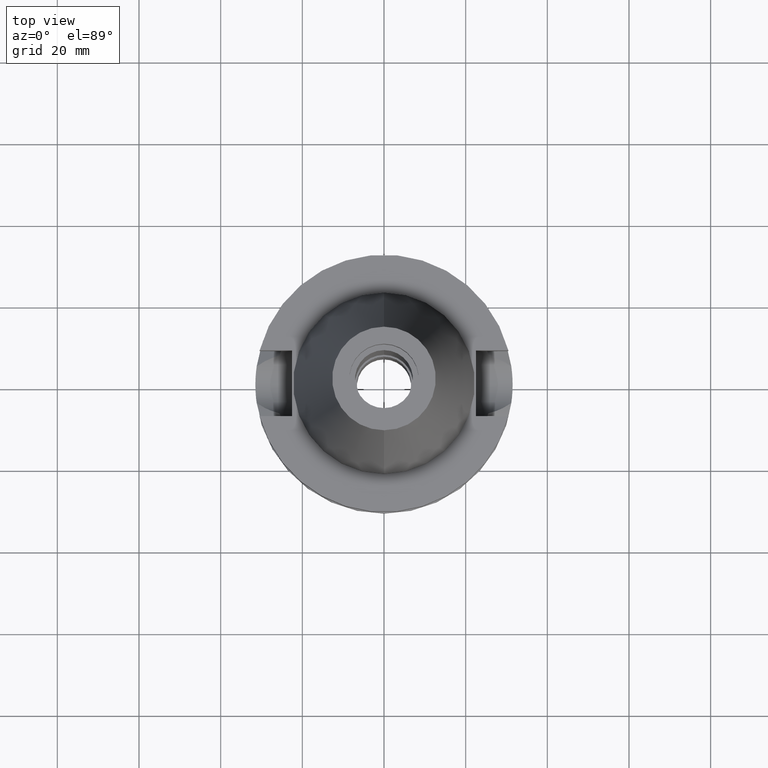
[diagram: clean part render]
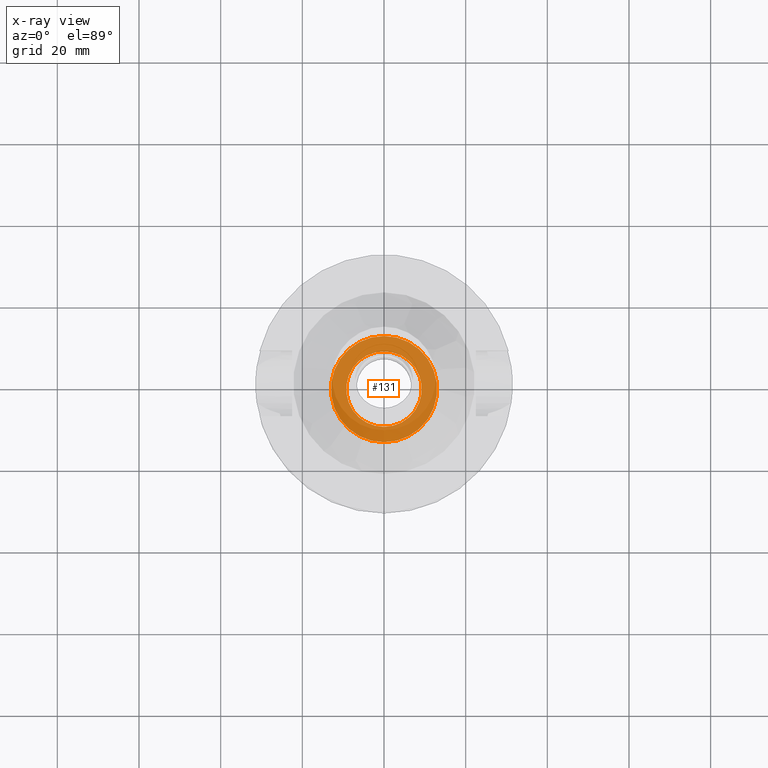
[diagram: x-ray — body ghosted, one internal face saturated and labeled with its STEP entity id]
A machine part, top view, then the same camera in x-ray: the body is ghosted and one INTERNAL B-rep face — a face not visible from any outside direction — is saturated and labeled: STEP entity #131.
In plain terms, the highlighted planar face has unit normal (0, 0, -1).
Its self-contained STEP definition (entity closure, byte-faithful):
#32 = DIRECTION ( 'NONE',  ( 0.0000000000000000000, 0.0000000000000000000, 1.000000000000000000 ) ) ;
#131 = ADVANCED_FACE ( 'NONE', ( #940, #2076 ), #3514, .F. ) ;
#171 = EDGE_CURVE ( 'NONE', #3494, #1661, #2758, .T. ) ;
#255 = EDGE_CURVE ( 'NONE', #1661, #3494, #1099, .T. ) ;
#336 = EDGE_LOOP ( 'NONE', ( #2705, #3433 ) ) ;
#701 = DIRECTION ( 'NONE',  ( 0.0000000000000000000, -1.000000000000000000, 0.0000000000000000000 ) ) ;
#829 = EDGE_CURVE ( 'NONE', #2169, #3541, #1262, .T. ) ;
#859 = CARTESIAN_POINT ( 'NONE',  ( 0.0000000000000000000, -9.250000000000000000, -11.00000000000000000 ) ) ;
#883 = DIRECTION ( 'NONE',  ( 0.0000000000000000000, -1.000000000000000000, 0.0000000000000000000 ) ) ;
#921 = CIRCLE ( 'NONE', #1070, 13.00000000000000000 ) ;
#940 = FACE_OUTER_BOUND ( 'NONE', #336, .T. ) ;
#994 = CARTESIAN_POINT ( 'NONE',  ( 0.0000000000000000000, 9.250000000000000000, -11.00000000000000000 ) ) ;
#1070 = AXIS2_PLACEMENT_3D ( 'NONE', #1838, #2120, #701 ) ;
#1079 = DIRECTION ( 'NONE',  ( 0.0000000000000000000, 0.0000000000000000000, -1.000000000000000000 ) ) ;
#1099 = CIRCLE ( 'NONE', #3643, 9.250000000000000000 ) ;
#1121 = CARTESIAN_POINT ( 'NONE',  ( 0.0000000000000000000, 0.0000000000000000000, -11.00000000000000000 ) ) ;
#1146 = DIRECTION ( 'NONE',  ( 0.0000000000000000000, 1.000000000000000000, 0.0000000000000000000 ) ) ;
#1262 = CIRCLE ( 'NONE', #1857, 13.00000000000000000 ) ;
#1661 = VERTEX_POINT ( 'NONE', #994 ) ;
#1688 = EDGE_CURVE ( 'NONE', #3541, #2169, #921, .T. ) ;
#1693 = CARTESIAN_POINT ( 'NONE',  ( 0.0000000000000000000, -13.00000000000000000, -11.00000000000000000 ) ) ;
#1699 = DIRECTION ( 'NONE',  ( 0.0000000000000000000, 0.0000000000000000000, 1.000000000000000000 ) ) ;
#1756 = ORIENTED_EDGE ( 'NONE', *, *, #255, .F. ) ;
#1811 = ORIENTED_EDGE ( 'NONE', *, *, #171, .F. ) ;
#1838 = CARTESIAN_POINT ( 'NONE',  ( 0.0000000000000000000, 0.0000000000000000000, -11.00000000000000000 ) ) ;
#1857 = AXIS2_PLACEMENT_3D ( 'NONE', #1121, #1079, #2807 ) ;
#1979 = AXIS2_PLACEMENT_3D ( 'NONE', #3209, #2297, #883 ) ;
#2076 = FACE_BOUND ( 'NONE', #2604, .T. ) ;
#2120 = DIRECTION ( 'NONE',  ( 0.0000000000000000000, 0.0000000000000000000, -1.000000000000000000 ) ) ;
#2169 = VERTEX_POINT ( 'NONE', #2795 ) ;
#2297 = DIRECTION ( 'NONE',  ( 0.0000000000000000000, 0.0000000000000000000, -1.000000000000000000 ) ) ;
#2576 = CARTESIAN_POINT ( 'NONE',  ( 0.0000000000000000000, 0.0000000000000000000, -11.00000000000000000 ) ) ;
#2604 = EDGE_LOOP ( 'NONE', ( #1756, #1811 ) ) ;
#2705 = ORIENTED_EDGE ( 'NONE', *, *, #829, .F. ) ;
#2758 = CIRCLE ( 'NONE', #3274, 9.250000000000000000 ) ;
#2795 = CARTESIAN_POINT ( 'NONE',  ( 0.0000000000000000000, 13.00000000000000000, -11.00000000000000000 ) ) ;
#2807 = DIRECTION ( 'NONE',  ( 0.0000000000000000000, 1.000000000000000000, 0.0000000000000000000 ) ) ;
#3126 = DIRECTION ( 'NONE',  ( 0.0000000000000000000, -1.000000000000000000, 0.0000000000000000000 ) ) ;
#3209 = CARTESIAN_POINT ( 'NONE',  ( 0.0000000000000000000, 0.0000000000000000000, -11.00000000000000000 ) ) ;
#3274 = AXIS2_PLACEMENT_3D ( 'NONE', #2576, #32, #3126 ) ;
#3365 = CARTESIAN_POINT ( 'NONE',  ( 0.0000000000000000000, 0.0000000000000000000, -11.00000000000000000 ) ) ;
#3433 = ORIENTED_EDGE ( 'NONE', *, *, #1688, .F. ) ;
#3494 = VERTEX_POINT ( 'NONE', #859 ) ;
#3514 = PLANE ( 'NONE',  #1979 ) ;
#3541 = VERTEX_POINT ( 'NONE', #1693 ) ;
#3643 = AXIS2_PLACEMENT_3D ( 'NONE', #3365, #1699, #1146 ) ;